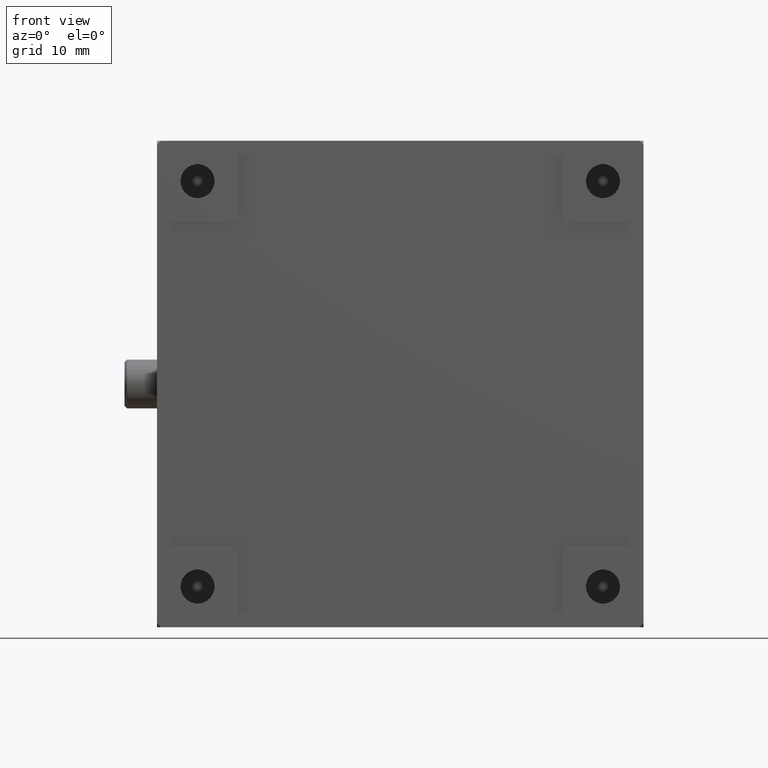
[diagram: clean part render]
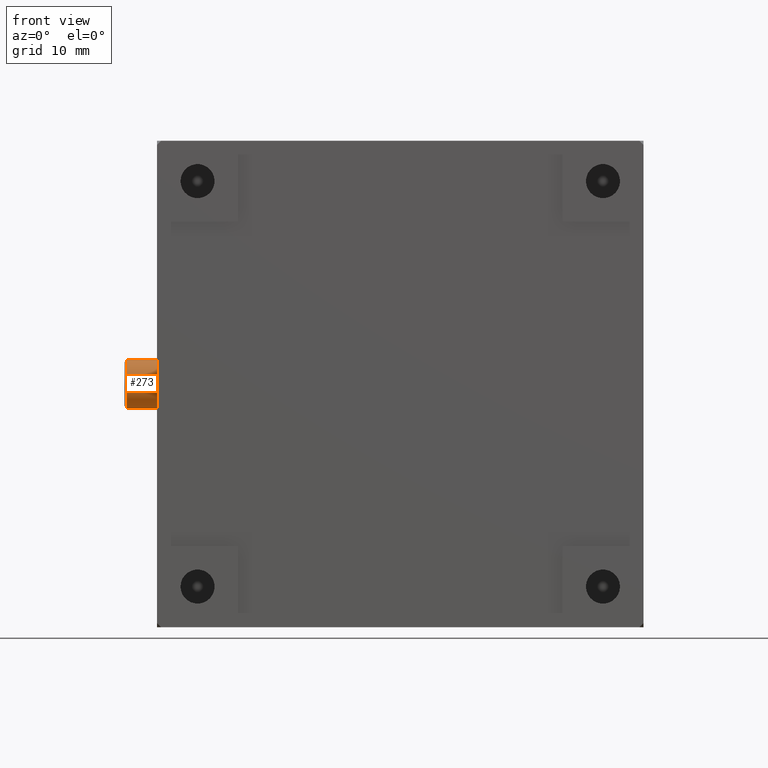
[diagram: same view with one face highlighted and labeled with its STEP entity id]
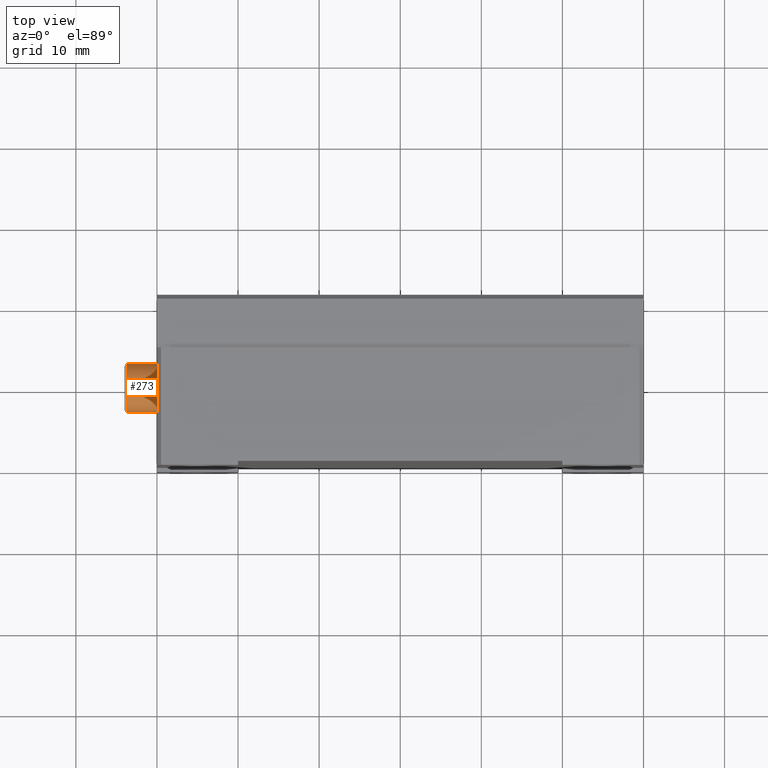
[diagram: same view with one face highlighted and labeled with its STEP entity id]
A machine part, front view. The second image highlights one B-rep face of the part: STEP entity #273.
A second angle (top view) of the same face is appended — the face is thin or edge-on in the first view.
In plain terms, the highlighted cylindrical surface (bore or boss wall) has radius 3.0005 mm, axis along (-1, 0, -0).
Its self-contained STEP definition (entity closure, byte-faithful):
#48 = CARTESIAN_POINT ( 'NONE',  ( 1.837276360420811749E-16, 10.00000000000000000, 26.99950000000000827 ) ) ;
#116 = CARTESIAN_POINT ( 'NONE',  ( 0.000000000000000000, 10.00000000000000000, 30.00000000000000000 ) ) ;
#273 = ADVANCED_FACE ( 'NONE', ( #2329, #2570 ), #2292, .T. ) ;
#284 = AXIS2_PLACEMENT_3D ( 'NONE', #3470, #3157, #287 ) ;
#287 = DIRECTION ( 'NONE',  ( 0.000000000000000000, 0.000000000000000000, -1.000000000000000000 ) ) ;
#332 = VERTEX_POINT ( 'NONE', #1494 ) ;
#384 = CIRCLE ( 'NONE', #3149, 3.000499999999989065 ) ;
#927 = AXIS2_PLACEMENT_3D ( 'NONE', #116, #1277, #3559 ) ;
#947 = CARTESIAN_POINT ( 'NONE',  ( -3.699999999999988187, 10.00000000000000000, 30.00000000000000000 ) ) ;
#1060 = ORIENTED_EDGE ( 'NONE', *, *, #3527, .T. ) ;
#1217 = DIRECTION ( 'NONE',  ( 0.000000000000000000, 0.000000000000000000, -1.000000000000000000 ) ) ;
#1277 = DIRECTION ( 'NONE',  ( -1.000000000000000000, 0.000000000000000000, -6.123233995736769734E-17 ) ) ;
#1494 = CARTESIAN_POINT ( 'NONE',  ( -3.699999999999988187, 10.00000000000000000, 26.99950000000000827 ) ) ;
#2292 = CYLINDRICAL_SURFACE ( 'NONE', #284, 3.000499999999989065 ) ;
#2329 = FACE_OUTER_BOUND ( 'NONE', #3023, .T. ) ;
#2395 = VERTEX_POINT ( 'NONE', #48 ) ;
#2400 = DIRECTION ( 'NONE',  ( 1.000000000000000000, -0.000000000000000000, 6.123233995736769734E-17 ) ) ;
#2570 = FACE_OUTER_BOUND ( 'NONE', #3096, .T. ) ;
#2615 = ORIENTED_EDGE ( 'NONE', *, *, #3171, .T. ) ;
#3023 = EDGE_LOOP ( 'NONE', ( #2615 ) ) ;
#3096 = EDGE_LOOP ( 'NONE', ( #1060 ) ) ;
#3149 = AXIS2_PLACEMENT_3D ( 'NONE', #947, #2400, #1217 ) ;
#3157 = DIRECTION ( 'NONE',  ( -1.000000000000000000, 0.000000000000000000, -6.123233995736769734E-17 ) ) ;
#3171 = EDGE_CURVE ( 'NONE', #2395, #2395, #3442, .T. ) ;
#3442 = CIRCLE ( 'NONE', #927, 3.000499999999989065 ) ;
#3470 = CARTESIAN_POINT ( 'NONE',  ( -4.000000000000000000, 10.00000000000000000, 30.00000000000000000 ) ) ;
#3527 = EDGE_CURVE ( 'NONE', #332, #332, #384, .T. ) ;
#3559 = DIRECTION ( 'NONE',  ( 6.123233995736772199E-17, 0.000000000000000000, -1.000000000000000000 ) ) ;